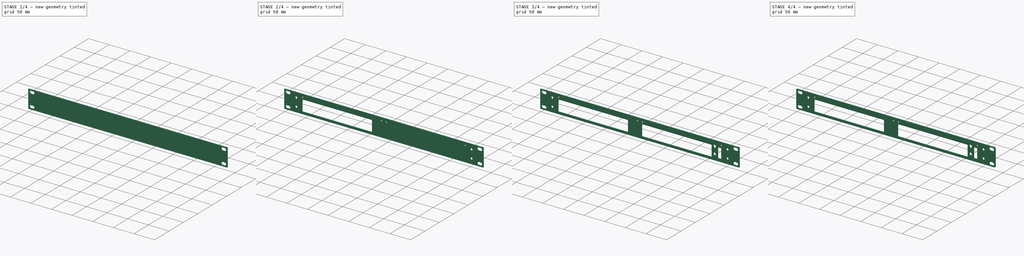
[diagram: build sequence overview — one tinted view per stage of 4, left to right]
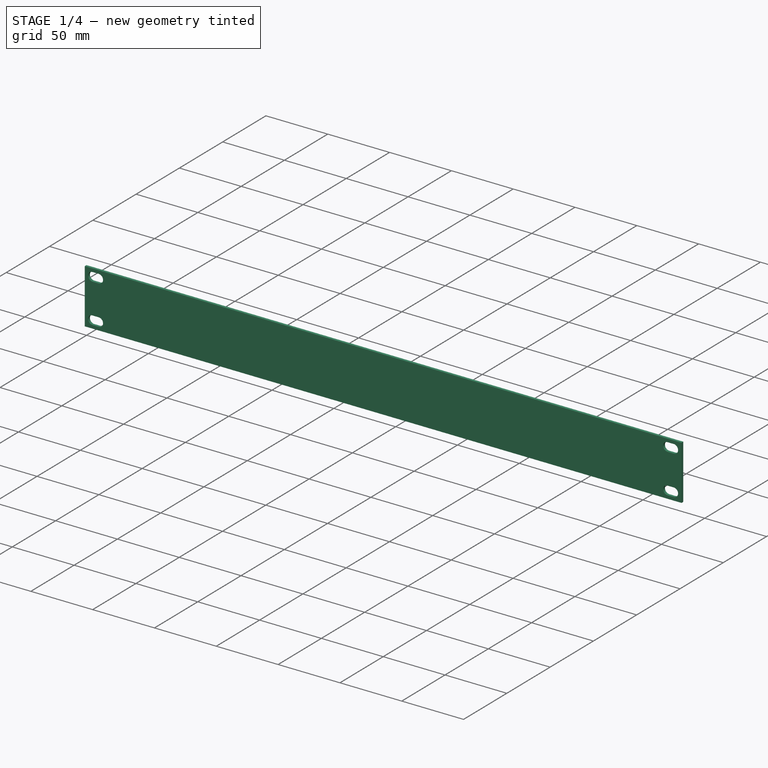
[diagram: stage 1 of 4 — iso view after this stage's code; geometry added in this stage tinted green]
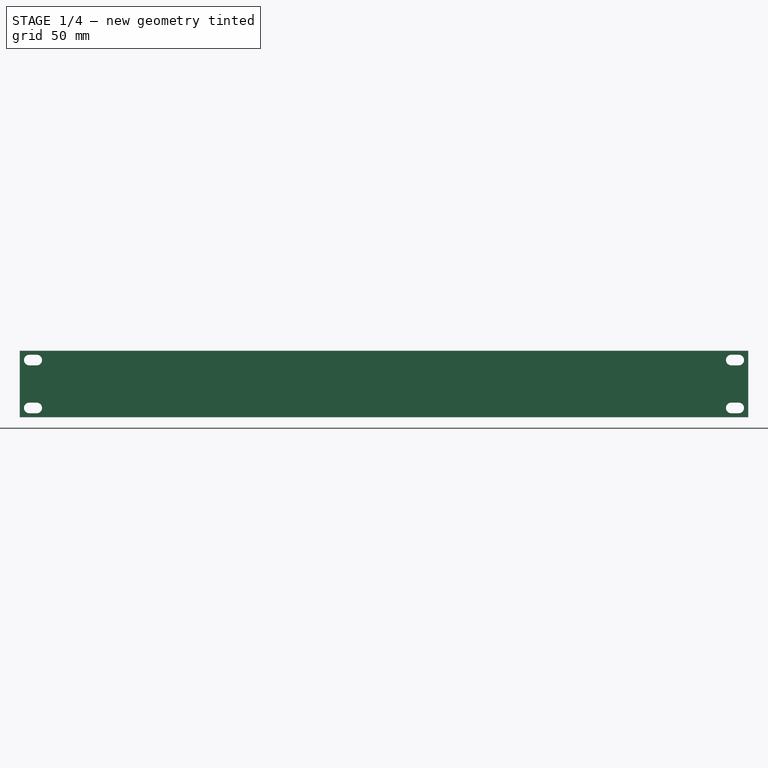
[diagram: stage 1 of 4 — front view after this stage's code; geometry added in this stage tinted green]
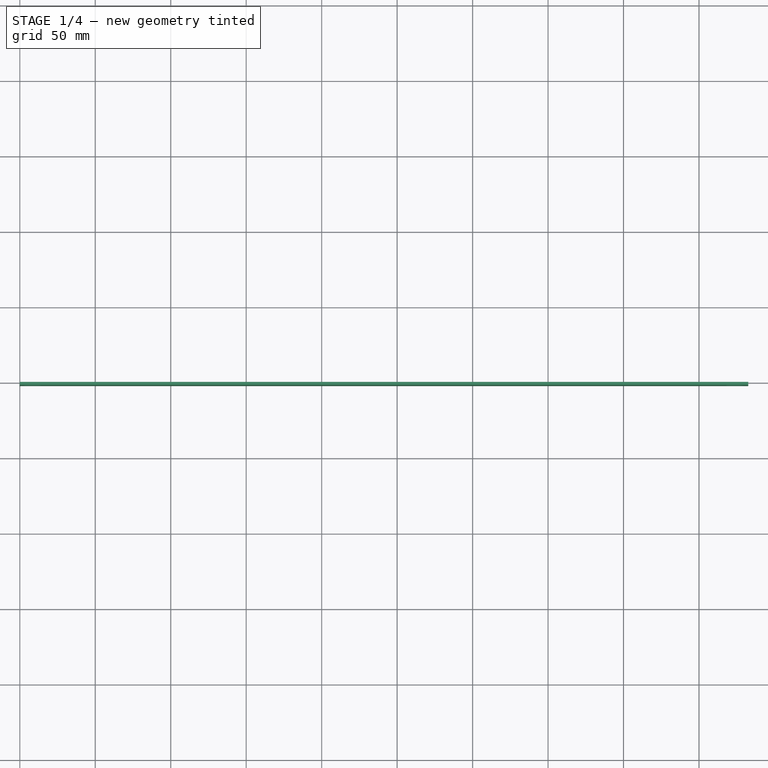
[diagram: stage 1 of 4 — top view after this stage's code; geometry added in this stage tinted green]
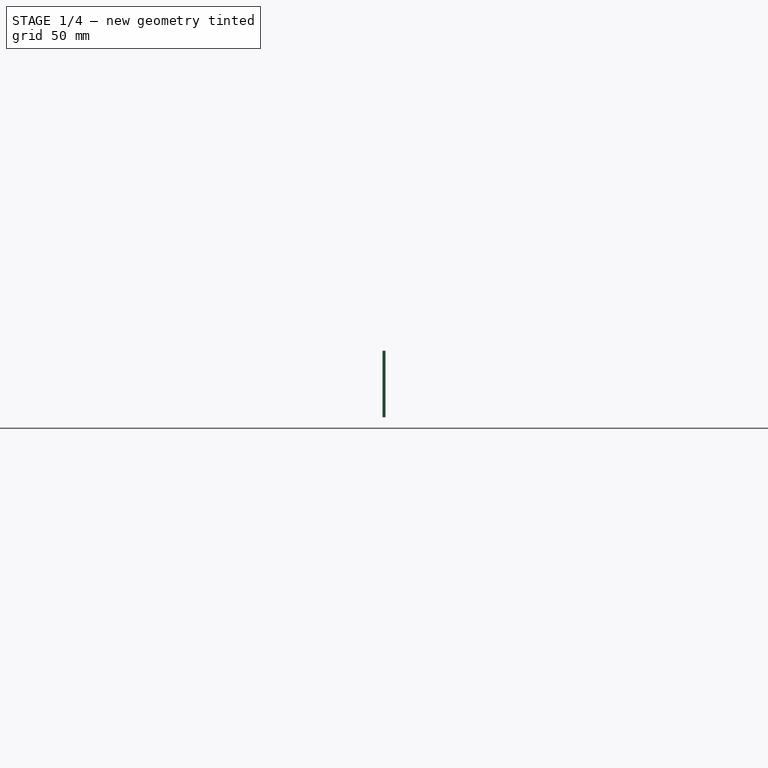
[diagram: stage 1 of 4 — right view after this stage's code; geometry added in this stage tinted green]
FCSTD DOCUMENT  (FreeCAD 1.0R39319 (Git))
Label: front_plate
License: All rights reserved
LicenseURL: https://en.wikipedia.org/wiki/All_rights_reserved
objects: Sketcher::SketchObject×7, PartDesign::Pocket×4, PartDesign::Hole×2, PartDesign::Fillet×2, PartDesign::Pad×1, App::Part×1, PartDesign::LinearPattern×1, PartDesign::Body×1
note: 44 computed .brp shape members not serialized (recipe doc carries the construction recipe); baked Part::Feature solids carry a one-line shape summary decoded from their .brp

FEATURE [Sketcher::SketchObject] Sketch
  ArcFitTolerance = 1e-06
  AttachmentSupport = -> [XZ_Plane]
  FullyConstrained = true
  MakeInternals = false
  MapMode = 5
  Placement = pos=(0,0,0) rot=(1,0,0;1.5708rad)
  sketch-geometry (4):
    g0: LineSegment StartX=0 StartY=0 StartZ=0 EndX=0 EndY=-44 EndZ=0
    g1: LineSegment StartX=0 StartY=-44 StartZ=0 EndX=482.6 EndY=-44 EndZ=0
    g2: LineSegment StartX=482.6 StartY=-44 StartZ=0 EndX=482.6 EndY=0 EndZ=0
    g3: LineSegment StartX=482.6 StartY=0 StartZ=0 EndX=0 EndY=0 EndZ=0
  constraints (11):
    c: Coincident(g0,g1)
    c: Coincident(g1,g2)
    c: Coincident(g2,g3)
    c: Coincident(g3,g0)
    c: Vertical(g0)
    c: Vertical(g2)
    c: Horizontal(g1)
    c: Horizontal(g3)
    c: Coincident(g0,g-1)
    c: DistanceY(g0,g0) = 44
    c: DistanceX(g3,g3) = 482.6
FEATURE [PartDesign::Pad] Pad
  Direction = (0,-1,2e-16)
  Length = 2
  Length2 = 10
  Placement = pos=(0,0,0) rot=(1,0,0;1.5708rad)
  Profile = -> Sketch
  ReferenceAxis = -> Sketch [N_Axis]
  Refine = true
  Suppressed = false
  Type = 0
FEATURE [Sketcher::SketchObject] Sketch001
  ArcFitTolerance = 1e-06
  AttachmentSupport = -> [Pad]
  ExternalGeometry = -> [Pad]
  FullyConstrained = true
  MakeInternals = false
  MapMode = 5
  Placement = pos=(0,-2,0) rot=(1,0,0;1.5708rad)
  expr: Constraints[32] = <<Params>>.Base_HoleWidth / 2
  expr: Constraints[33] = <<Params>>.Base_HoleWidth / 2
  expr: Constraints[59] = <<Params>>.Base_HoleWidth / 2
  expr: Constraints[60] = <<Params>>.Base_HoleWidth / 2
  expr: Constraints[63] = 0.625 * 2 in
  sketch-geometry (31):
    g0: GeomPoint [constr] X=241.3 Y=-44 Z=0
    g1: LineSegment [constr] StartX=241.3 StartY=-44 StartZ=0 EndX=241.3 EndY=0 EndZ=0
    g2: LineSegment [constr] StartX=241.3 StartY=-22 StartZ=0 EndX=0 EndY=-22 EndZ=0
    g3: ArcOfCircle CenterX=471.35 CenterY=-37.875 CenterZ=0 NormalX=0 NormalY=0 NormalZ=1 AngleXU=0 Radius=3.5 StartAngle=1.5708 EndAngle=4.71239
    g4: ArcOfCircle CenterX=476.35 CenterY=-37.875 CenterZ=0 NormalX=0 NormalY=0 NormalZ=1 AngleXU=0 Radius=3.5 StartAngle=4.71239 EndAngle=7.85398
    g5: LineSegment StartX=471.35 StartY=-34.375 StartZ=0 EndX=476.35 EndY=-34.375 EndZ=0
    g6: LineSegment StartX=471.35 StartY=-41.375 StartZ=0 EndX=476.35 EndY=-41.375 EndZ=0
    g7: GeomPoint [constr] X=479.85 Y=-37.875 Z=0
    g8: LineSegment [constr] StartX=471.35 StartY=-37.875 StartZ=0 EndX=476.35 EndY=-37.875 EndZ=0
    g9: GeomPoint [constr] X=473.85 Y=-37.875 Z=0
    g10: ArcOfCircle CenterX=6.25 CenterY=-37.875 CenterZ=0 NormalX=0 NormalY=0 NormalZ=1 AngleXU=0 Radius=3.5 StartAngle=1.5708 EndAngle=4.71239
    g11: ArcOfCircle CenterX=11.25 CenterY=-37.875 CenterZ=0 NormalX=0 NormalY=0 NormalZ=1 AngleXU=0 Radius=3.5 StartAngle=4.71239 EndAngle=7.85398
    g12: LineSegment StartX=6.25 StartY=-34.375 StartZ=0 EndX=11.25 EndY=-34.375 EndZ=0
    g13: LineSegment StartX=6.25 StartY=-41.375 StartZ=0 EndX=11.25 EndY=-41.375 EndZ=0
    g14: GeomPoint [constr] X=2.75 Y=-37.875 Z=0
    g15: LineSegment [constr] StartX=6.25 StartY=-37.875 StartZ=0 EndX=11.25 EndY=-37.875 EndZ=0
    g16: GeomPoint [constr] X=8.75 Y=-37.875 Z=0
    g17: ArcOfCircle CenterX=471.35 CenterY=-6.125 CenterZ=0 NormalX=0 NormalY=0 NormalZ=1 AngleXU=0 Radius=3.5 StartAngle=1.5708 EndAngle=4.71239
    g18: ArcOfCircle CenterX=476.35 CenterY=-6.125 CenterZ=0 NormalX=0 NormalY=0 NormalZ=1 AngleXU=0 Radius=3.5 StartAngle=4.71239 EndAngle=7.85398
    g19: LineSegment StartX=471.35 StartY=-2.625 StartZ=0 EndX=476.35 EndY=-2.625 EndZ=0
    g20: LineSegment StartX=471.35 StartY=-9.625 StartZ=0 EndX=476.35 EndY=-9.625 EndZ=0
    g21: GeomPoint [constr] X=479.85 Y=-6.125 Z=0
    g22: LineSegment [constr] StartX=471.35 StartY=-6.125 StartZ=0 EndX=476.35 EndY=-6.125 EndZ=0
    g23: GeomPoint [constr] X=473.85 Y=-6.125 Z=0
    g24: ArcOfCircle CenterX=6.25 CenterY=-6.125 CenterZ=0 NormalX=0 NormalY=0 NormalZ=1 AngleXU=0 Radius=3.5 StartAngle=1.5708 EndAngle=4.71239
    g25: ArcOfCircle CenterX=11.25 CenterY=-6.125 CenterZ=0 NormalX=0 NormalY=0 NormalZ=1 AngleXU=0 Radius=3.5 StartAngle=4.71239 EndAngle=7.85398
    g26: LineSegment StartX=6.25 StartY=-2.625 StartZ=0 EndX=11.25 EndY=-2.625 EndZ=0
    g27: LineSegment StartX=6.25 StartY=-9.625 StartZ=0 EndX=11.25 EndY=-9.625 EndZ=0
    g28: GeomPoint [constr] X=2.75 Y=-6.125 Z=0
    g29: LineSegment [constr] StartX=6.25 StartY=-6.125 StartZ=0 EndX=11.25 EndY=-6.125 EndZ=0
    g30: GeomPoint [constr] X=8.75 Y=-6.125 Z=0
  constraints (64):
    c: Symmetric(g-4,g-4,g0)
    c: Coincident(g1,g0)
    c: PointOnObject(g1,g-1)
    c: Vertical(g1)
    c: Symmetric(g1,g1,g2)
    c: PointOnObject(g2,g-2)
    c: Horizontal(g2)
    c: Tangent(g3,g5) = 1.5708
    c: Tangent(g3,g6) = -1.5708
    c: Tangent(g4,g5) = 1.5708
    c: Tangent(g4,g6) = -1.5708
    c: Equal(g3,g4)
    c: Horizontal(g5)
    c: DistanceY(g4,g4) = 7
    c: PointOnObject(g7,g4)
    c: Horizontal(g4,g7)
    c: Coincident(g8,g3)
    c: Coincident(g8,g4)
    c: Symmetric(g8,g8,g9)
    c: Tangent(g10,g12) = 1.5708
    c: Tangent(g10,g13) = -1.5708
    c: Tangent(g11,g12) = 1.5708
    c: Tangent(g11,g13) = -1.5708
    c: Equal(g10,g11)
    c: Horizontal(g12)
    c: DistanceY(g11,g11) = 7
    c: PointOnObject(g14,g10)
    c: Horizontal(g10,g14)
    c: Coincident(g15,g10)
    c: Coincident(g15,g11)
    c: Symmetric(g15,g15,g16)
    c: Symmetric(g9,g16,g1)
    c: DistanceX(g14,g16) = 6
    c: DistanceX(g9,g7) = 6
    c: Tangent(g17,g19) = 1.5708
    c: Tangent(g17,g20) = -1.5708
    c: Tangent(g18,g19) = 1.5708
    c: Tangent(g18,g20) = -1.5708
    c: Equal(g17,g18)
    c: Horizontal(g19)
    c: DistanceY(g18,g18) = 7
    c: PointOnObject(g21,g18)
    c: Horizontal(g18,g21)
    c: Coincident(g22,g17)
    c: Coincident(g22,g18)
    c: Symmetric(g22,g22,g23)
    c: Tangent(g24,g26) = 1.5708
    c: Tangent(g24,g27) = -1.5708
    c: Tangent(g25,g26) = 1.5708
    c: Tangent(g25,g27) = -1.5708
    c: Equal(g24,g25)
    c: Horizontal(g26)
    c: DistanceY(g25,g25) = 7
    c: PointOnObject(g28,g24)
    c: Horizontal(g24,g28)
    c: Coincident(g29,g24)
    c: Coincident(g29,g25)
    c: Symmetric(g29,g29,g30)
    c: DistanceX(g30,g23) = 465.1
    c: DistanceX(g28,g30) = 6
    c: DistanceX(g23,g21) = 6
    c: Symmetric(g23,g9,g2)
    c: Symmetric(g30,g16,g2)
    c: DistanceY(g16,g30) = 31.75
FEATURE [App::Part] Part  label="Params"
  Base_HoleWidth = 12
  Origin = -> Origin001
FEATURE [PartDesign::Pocket] Pocket
  BaseFeature = -> Pad
  Direction = (0,1,-2e-16)
  Length = 5
  Length2 = 5
  Placement = pos=(0,0,0) rot=(1,0,0;1.5708rad)
  Profile = -> Sketch001
  ReferenceAxis = -> Sketch001 [N_Axis]
  Refine = true
  Suppressed = false
  Type = 1
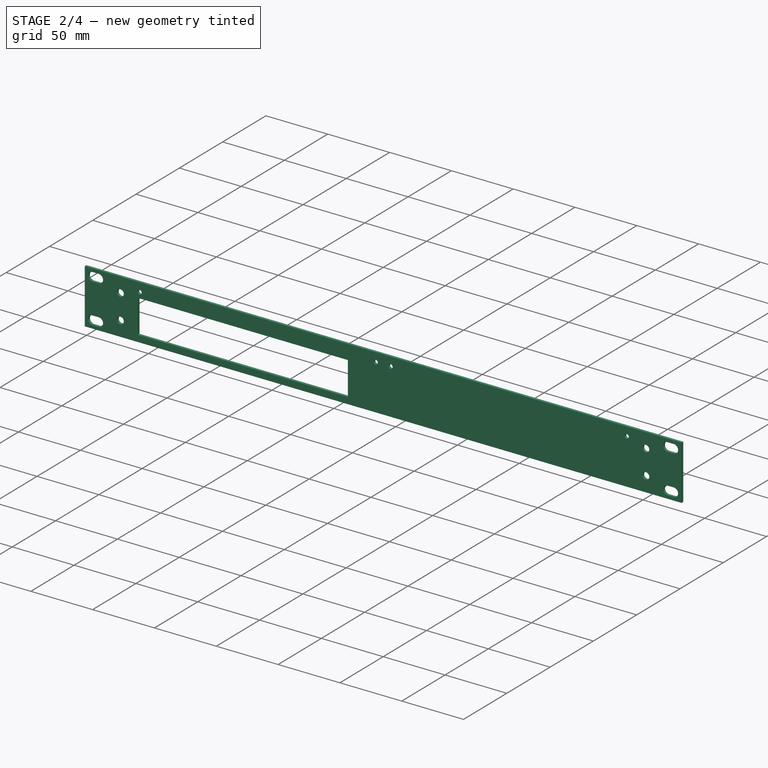
[diagram: stage 2 of 4 — iso view after this stage's code; geometry added in this stage tinted green]
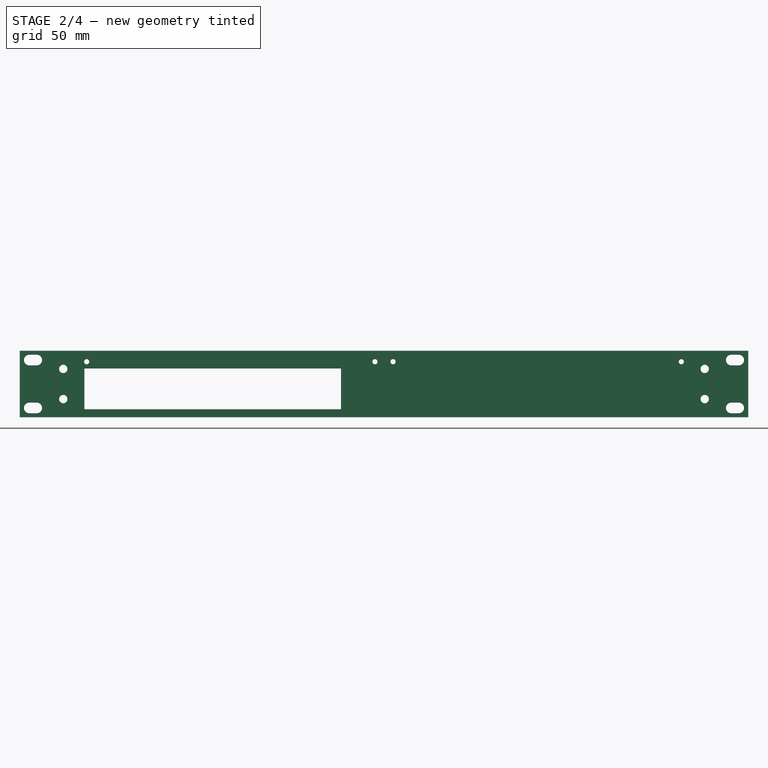
[diagram: stage 2 of 4 — front view after this stage's code; geometry added in this stage tinted green]
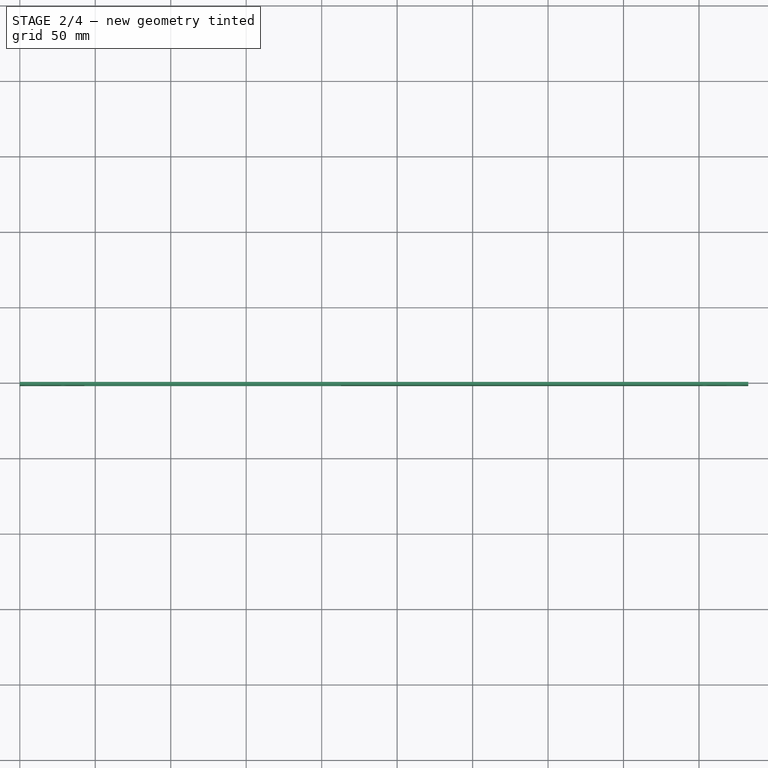
[diagram: stage 2 of 4 — top view after this stage's code; geometry added in this stage tinted green]
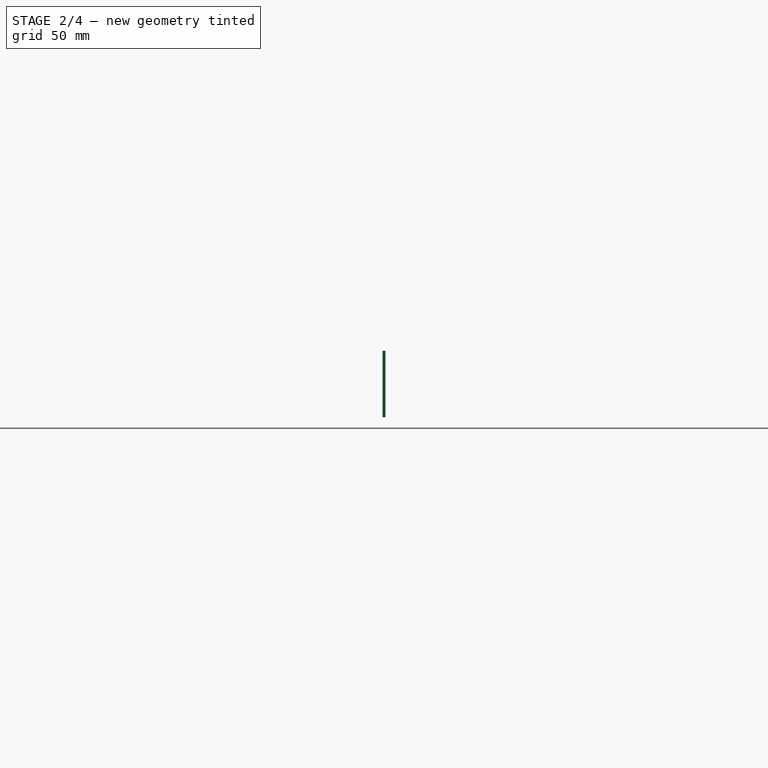
[diagram: stage 2 of 4 — right view after this stage's code; geometry added in this stage tinted green]
FEATURE [Sketcher::SketchObject] Sketch002
  ArcFitTolerance = 1e-06
  AttachmentSupport = -> [Pocket]
  ExternalGeometry = -> [Pocket]
  FullyConstrained = true
  MakeInternals = false
  MapMode = 5
  Placement = pos=(0,-2,0) rot=(1,0,0;1.5708rad)
  sketch-geometry (6):
    g0: LineSegment [constr] StartX=241.3 StartY=-44 StartZ=0 EndX=241.3 EndY=0 EndZ=0
    g1: LineSegment [constr] StartX=241.3 StartY=-22 StartZ=0 EndX=482.6 EndY=-22 EndZ=0
    g2: Circle CenterX=28.8 CenterY=-12 CenterZ=0 NormalX=0 NormalY=0 NormalZ=1 AngleXU=0 Radius=2.5
    g3: Circle CenterX=28.8 CenterY=-32 CenterZ=0 NormalX=0 NormalY=0 NormalZ=1 AngleXU=0 Radius=2.5
    g4: Circle CenterX=453.8 CenterY=-12 CenterZ=0 NormalX=0 NormalY=0 NormalZ=1 AngleXU=0 Radius=2.5
    g5: Circle CenterX=453.8 CenterY=-32 CenterZ=0 NormalX=0 NormalY=0 NormalZ=1 AngleXU=0 Radius=2.5
  constraints (14):
    c: Symmetric(g-4,g-4,g0)
    c: PointOnObject(g0,g-1)
    c: Vertical(g0)
    c: Symmetric(g0,g0,g1)
    c: Symmetric(g-3,g-3,g1)
    c: Symmetric(g2,g3,g1)
    c: Equal(g4,g5)
    c: Diameter(g4) = 5
    c: Equal(g2,g4)
    c: Symmetric(g2,g4,g0)
    c: Symmetric(g4,g5,g1)
    c: DistanceX(g2,g4) = 425
    c: DistanceY(g5,g4) = 20
    c: Equal(g2,g3)
FEATURE [PartDesign::Hole] Hole
  BaseFeature = -> Pocket
  CustomThreadClearance = 0
  Depth = 978.904
  DepthType = 1
  Diameter = 5.5
  DrillForDepth = false
  DrillPoint = 1
  DrillPointAngle = 118
  HoleCutCountersinkAngle = 90
  HoleCutCustomValues = false
  HoleCutDepth = 0
  HoleCutDiameter = 6.1
  HoleCutType = 0
  ModelThread = false
  Placement = pos=(0,0,0) rot=(1,0,0;1.5708rad)
  Profile = -> Sketch002
  Refine = true
  Suppressed = false
  Tapered = false
  TaperedAngle = 90
  ThreadClass = 0
  ThreadDepth = 978.904
  ThreadDepthType = 0
  ThreadDirection = 0
  ThreadFit = 0
  ThreadSize = 13
  ThreadType = 1
  Threaded = false
  UseCustomThreadClearance = false
FEATURE [Sketcher::SketchObject] Sketch003
  ArcFitTolerance = 1e-06
  AttachmentSupport = -> [Hole]
  ExternalGeometry = -> [Hole]
  FullyConstrained = true
  MakeInternals = false
  MapMode = 5
  Placement = pos=(0,-2,0) rot=(1,0,0;1.5708rad)
  sketch-geometry (12):
    g0: GeomPoint [constr] X=482.6 Y=-22 Z=0
    g1: GeomPoint [constr] X=241.3 Y=-44 Z=0
    g2: LineSegment [constr] StartX=241.3 StartY=-44 StartZ=0 EndX=241.3 EndY=0 EndZ=0
    g3: LineSegment [constr] StartX=482.6 StartY=-22 StartZ=0 EndX=241.3 EndY=-22 EndZ=0
    g4: Circle CenterX=438.3 CenterY=-7.25 CenterZ=0 NormalX=0 NormalY=0 NormalZ=1 AngleXU=0 Radius=1.625
    g5: GeomPoint [constr] X=482.6 Y=-2.75 Z=0
    g6: GeomPoint [constr] X=482.6 Y=-41.25 Z=0
    g7: Circle CenterX=247.3 CenterY=-7.25 CenterZ=0 NormalX=0 NormalY=0 NormalZ=1 AngleXU=0 Radius=1.625
    g8: Circle CenterX=235.3 CenterY=-7.25 CenterZ=0 NormalX=0 NormalY=0 NormalZ=1 AngleXU=0 Radius=1.625
    g9: Circle CenterX=44.3 CenterY=-7.25 CenterZ=0 NormalX=0 NormalY=0 NormalZ=1 AngleXU=0 Radius=1.625
    g10: LineSegment [constr] StartX=44.3 StartY=-7.25 StartZ=0 EndX=0 EndY=-7.25 EndZ=0
    g11: LineSegment [constr] StartX=438.3 StartY=-7.25 StartZ=0 EndX=482.6 EndY=-7.25 EndZ=0
  constraints (28):
    c: Symmetric(g-4,g-4,g0)
    c: Symmetric(g-3,g-3,g1)
    c: Coincident(g2,g1)
    c: PointOnObject(g2,g-1)
    c: Vertical(g2)
    c: Coincident(g3,g0)
    c: Symmetric(g2,g2,g3)
    c: Symmetric(g5,g6,g3)
    c: DistanceY(g6,g5) = 38.5
    c: PointOnObject(g5,g-4)
    c: DistanceY(g4,g5) = 4.5
    c: Diameter(g7) = 3.25
    c: Horizontal(g7,g4)
    c: Equal(g4,g7)
    c: DistanceX(g7,g4) = 191
    c: Equal(g8,g7)
    c: DistanceX(g8,g7) = 12
    c: Horizontal(g8,g7)
    c: Equal(g9,g8)
    c: DistanceX(g9,g8) = 191
    c: Horizontal(g9,g8)
    c: Coincident(g10,g9)
    c: PointOnObject(g10,g-2)
    c: Horizontal(g10)
    c: Coincident(g11,g4)
    c: PointOnObject(g11,g-4)
    c: Horizontal(g11)
    c: Equal(g11,g10)
FEATURE [PartDesign::Hole] Hole001
  BaseFeature = -> Hole
  CustomThreadClearance = 0
  Depth = 978.904
  DepthType = 1
  Diameter = 3.4
  DrillForDepth = false
  DrillPoint = 1
  DrillPointAngle = 118
  HoleCutCountersinkAngle = 90
  HoleCutCustomValues = false
  HoleCutDepth = 0
  HoleCutDiameter = 6.1
  HoleCutType = 0
  ModelThread = false
  Placement = pos=(0,0,0) rot=(1,0,0;1.5708rad)
  Profile = -> Sketch003
  Refine = true
  Suppressed = false
  Tapered = false
  TaperedAngle = 90
  ThreadClass = 0
  ThreadDepth = 978.904
  ThreadDepthType = 0
  ThreadDirection = 0
  ThreadFit = 0
  ThreadSize = 9
  ThreadType = 1
  Threaded = false
  UseCustomThreadClearance = false
FEATURE [Sketcher::SketchObject] Sketch004
  ArcFitTolerance = 1e-06
  AttachmentSupport = -> [Hole001]
  ExternalGeometry = -> [Hole001]
  FullyConstrained = true
  MakeInternals = false
  MapMode = 5
  Placement = pos=(0,-2,0) rot=(1,0,0;1.5708rad)
  sketch-geometry (4):
    g0: LineSegment StartX=42.8 StartY=-11.75 StartZ=0 EndX=42.8 EndY=-38.75 EndZ=0
    g1: LineSegment StartX=42.8 StartY=-38.75 StartZ=0 EndX=212.8 EndY=-38.75 EndZ=0
    g2: LineSegment StartX=212.8 StartY=-38.75 StartZ=0 EndX=212.8 EndY=-11.75 EndZ=0
    g3: LineSegment StartX=212.8 StartY=-11.75 StartZ=0 EndX=42.8 EndY=-11.75 EndZ=0
  constraints (12):
    c: Coincident(g0,g1)
    c: Coincident(g1,g2)
    c: Coincident(g2,g3)
    c: Coincident(g3,g0)
    c: Vertical(g0)
    c: Vertical(g2)
    c: Horizontal(g1)
    c: Horizontal(g3)
    c: DistanceY(g0,g-3) = 4.5
    c: DistanceX(g0,g-3) = 1.5
    c: DistanceY(g0,g0) = 27
    c: DistanceX(g3,g3) = 170
FEATURE [PartDesign::Pocket] Pocket001
  BaseFeature = -> Hole001
  Direction = (0,1,-2e-16)
  Length = 5
  Length2 = 5
  Placement = pos=(0,0,0) rot=(1,0,0;1.5708rad)
  Profile = -> Sketch004
  ReferenceAxis = -> Sketch004 [N_Axis]
  Refine = true
  Suppressed = false
  Type = 1
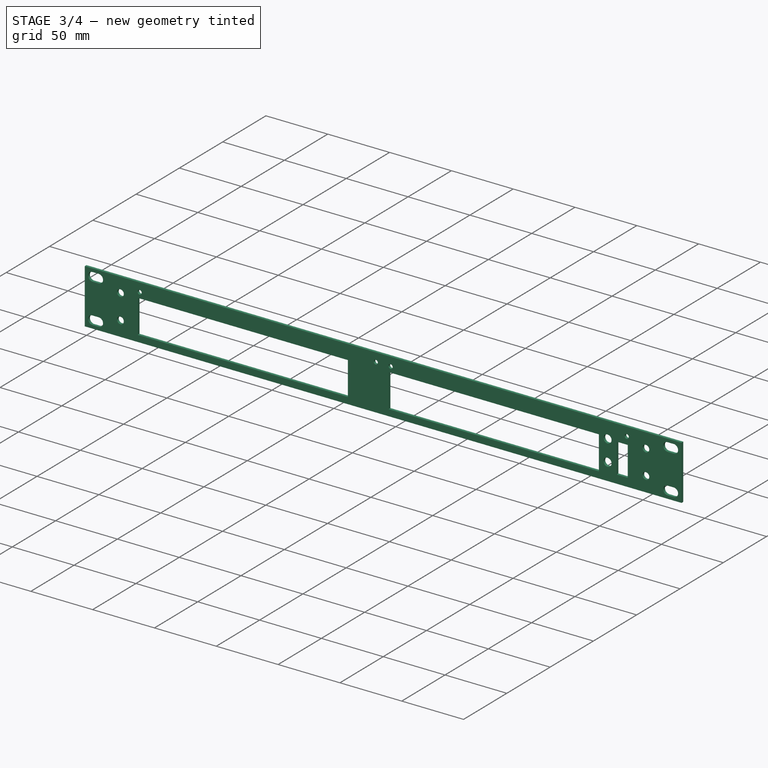
[diagram: stage 3 of 4 — iso view after this stage's code; geometry added in this stage tinted green]
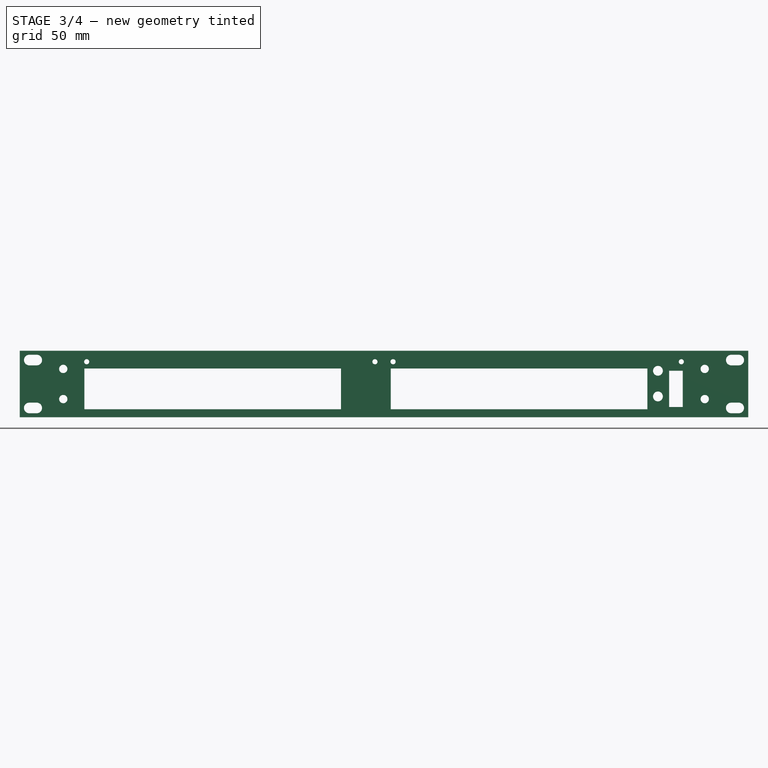
[diagram: stage 3 of 4 — front view after this stage's code; geometry added in this stage tinted green]
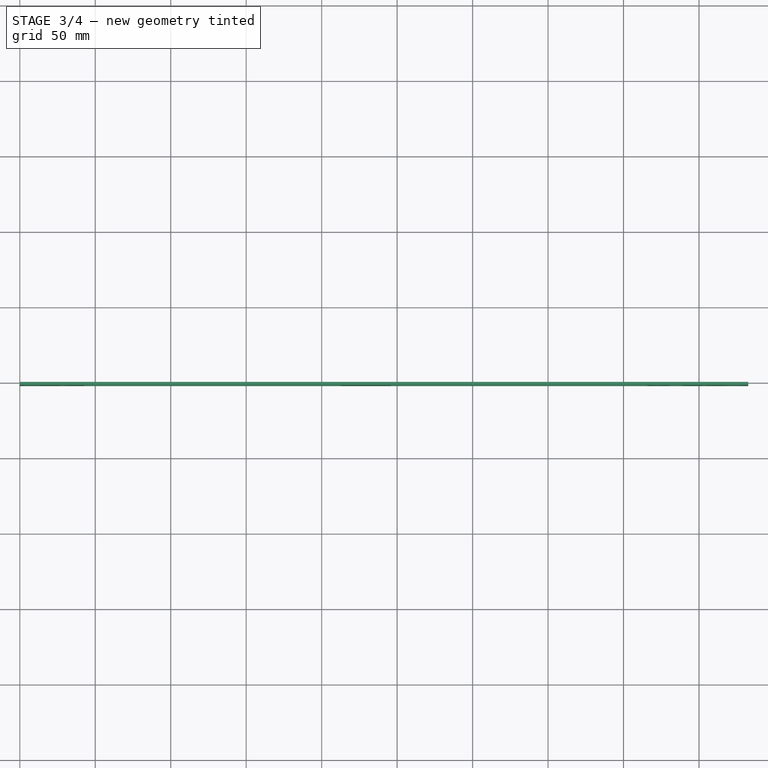
[diagram: stage 3 of 4 — top view after this stage's code; geometry added in this stage tinted green]
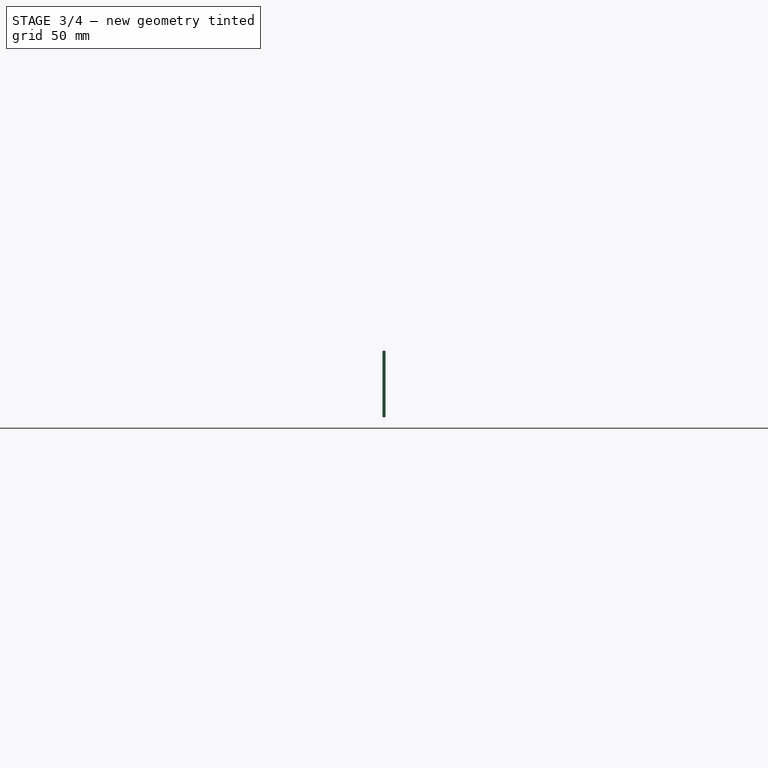
[diagram: stage 3 of 4 — right view after this stage's code; geometry added in this stage tinted green]
FEATURE [PartDesign::LinearPattern] LinearPattern
  BaseFeature = -> Pocket001
  Direction = -> Sketch004 [H_Axis]
  Length = 203
  Mode = 0
  Occurrences = 2
  Offset = 203
  Originals = -> [Pocket001]
  Placement = pos=(0,0,0) rot=(1,0,0;1.5708rad)
  Refine = true
  Suppressed = false
  TransformMode = 0
FEATURE [Sketcher::SketchObject] Sketch005
  ArcFitTolerance = 1e-06
  AttachmentSupport = -> [LinearPattern]
  ExternalGeometry = -> [LinearPattern]
  FullyConstrained = true
  MakeInternals = false
  MapMode = 5
  Placement = pos=(0,-2,0) rot=(1,0,0;1.5708rad)
  sketch-geometry (2):
    g0: Circle CenterX=422.8 CenterY=-13.25 CenterZ=0 NormalX=0 NormalY=0 NormalZ=1 AngleXU=0 Radius=3.25
    g1: Circle CenterX=422.8 CenterY=-30.25 CenterZ=0 NormalX=0 NormalY=0 NormalZ=1 AngleXU=0 Radius=3.25
  constraints (6):
    c: Diameter(g0) = 6.5
    c: DistanceX(g0,g-3) = 15.5
    c: DistanceY(g0,g-3) = 6
    c: Vertical(g1,g0)
    c: Equal(g1,g0)
    c: DistanceY(g1,g0) = 17
FEATURE [PartDesign::Pocket] Pocket002
  BaseFeature = -> LinearPattern
  Direction = (0,1,-2e-16)
  Length = 5
  Length2 = 5
  Placement = pos=(0,0,0) rot=(1,0,0;1.5708rad)
  Profile = -> Sketch005
  ReferenceAxis = -> Sketch005 [N_Axis]
  Refine = true
  Suppressed = false
  Type = 1
FEATURE [Sketcher::SketchObject] Sketch006
  ArcFitTolerance = 1e-06
  AttachmentSupport = -> [Pocket002]
  ExternalGeometry = -> [Pocket002]
  FullyConstrained = true
  MakeInternals = false
  MapMode = 5
  Placement = pos=(0,-2,0) rot=(1,0,0;1.5708rad)
  sketch-geometry (5):
    g0: LineSegment StartX=430.2 StartY=-13.25 StartZ=0 EndX=430.2 EndY=-37.25 EndZ=0
    g1: LineSegment StartX=430.2 StartY=-37.25 StartZ=0 EndX=439.2 EndY=-37.25 EndZ=0
    g2: LineSegment StartX=439.2 StartY=-37.25 StartZ=0 EndX=439.2 EndY=-13.25 EndZ=0
    g3: LineSegment StartX=439.2 StartY=-13.25 StartZ=0 EndX=430.2 EndY=-13.25 EndZ=0
    g4: GeomPoint [constr] X=434.7 Y=-13.25 Z=0
  constraints (13):
    c: Coincident(g0,g1)
    c: Coincident(g1,g2)
    c: Coincident(g2,g3)
    c: Coincident(g3,g0)
    c: Vertical(g0)
    c: Vertical(g2)
    c: Horizontal(g1)
    c: Horizontal(g3)
    c: DistanceX(g3,g3) = 9
    c: DistanceY(g0,g0) = 24
    c: Symmetric(g3,g3,g4)
    c: DistanceX(g4,g-3) = 3.6
    c: DistanceY(g4,g-3) = 6
FEATURE [PartDesign::Pocket] Pocket003
  BaseFeature = -> Pocket002
  Direction = (0,1,-2e-16)
  Length = 5
  Length2 = 5
  Placement = pos=(0,0,0) rot=(1,0,0;1.5708rad)
  Profile = -> Sketch006
  ReferenceAxis = -> Sketch006 [N_Axis]
  Refine = true
  Suppressed = false
  Type = 1
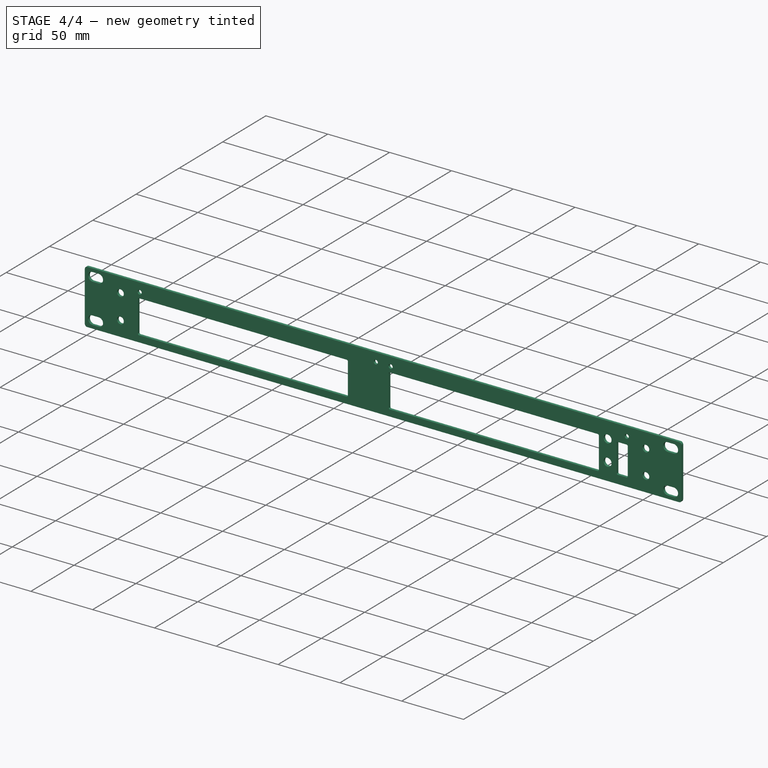
[diagram: stage 4 of 4 — iso view after this stage's code; geometry added in this stage tinted green]
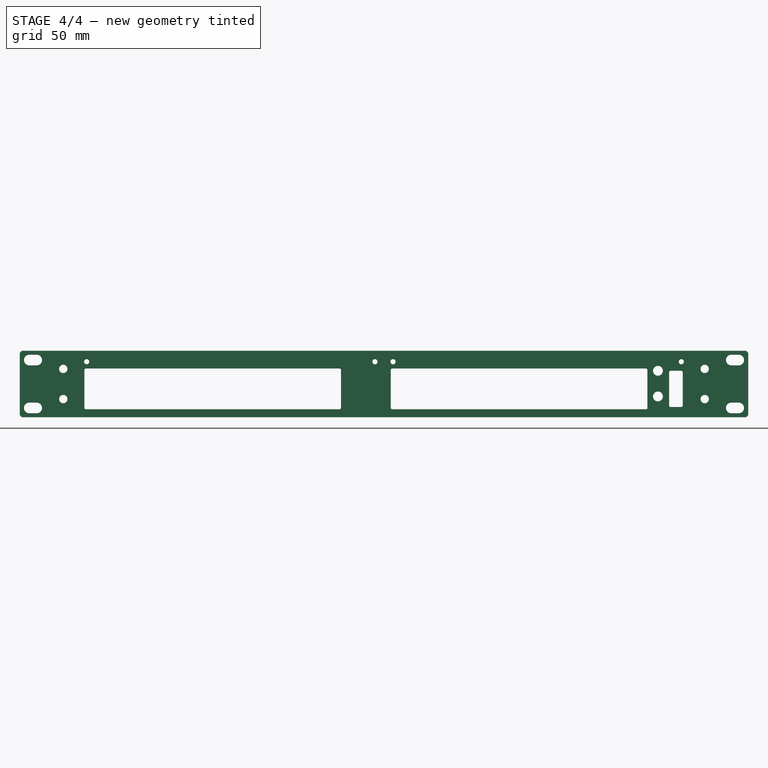
[diagram: stage 4 of 4 — front view after this stage's code; geometry added in this stage tinted green]
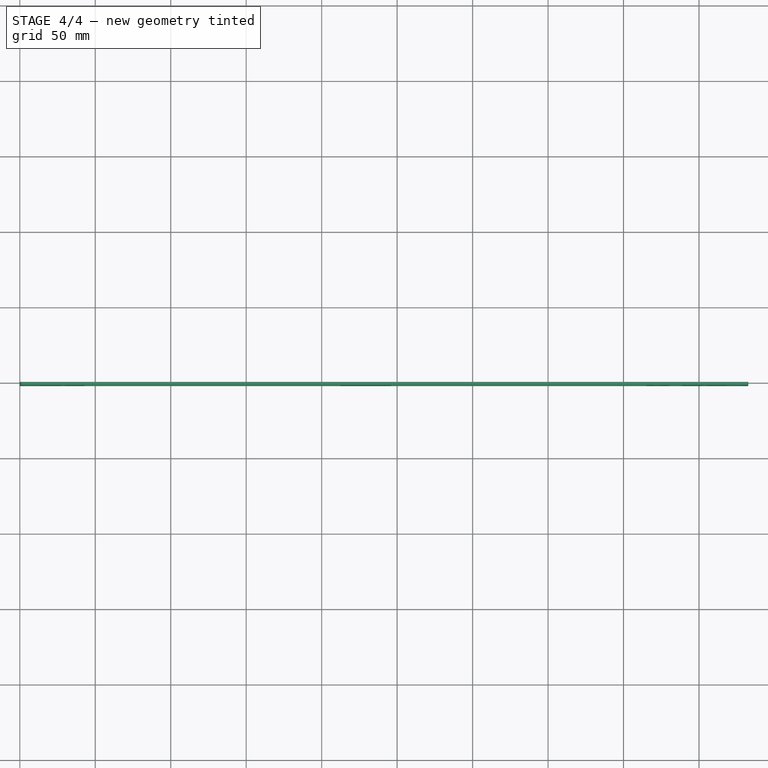
[diagram: stage 4 of 4 — top view after this stage's code; geometry added in this stage tinted green]
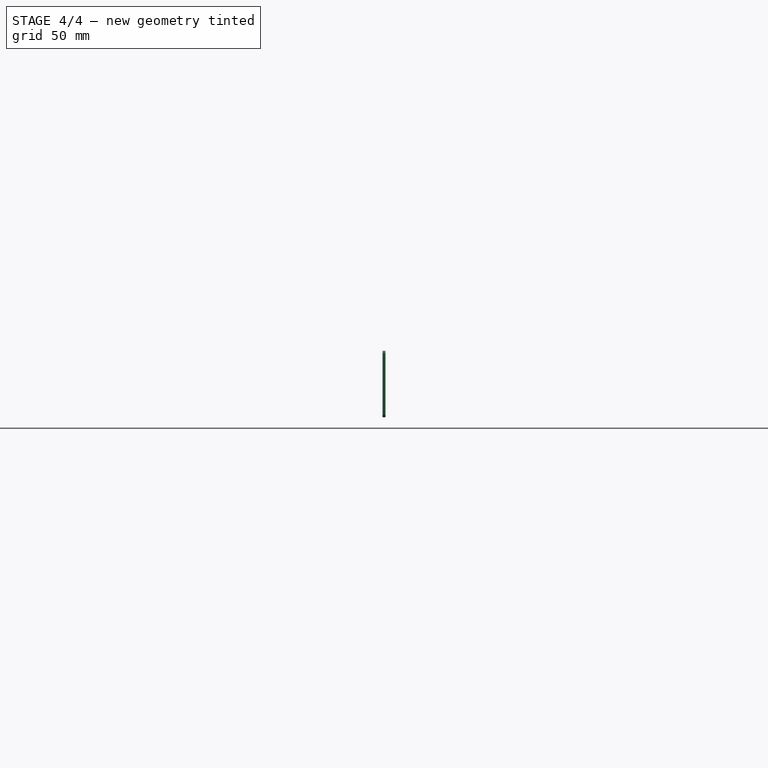
[diagram: stage 4 of 4 — right view after this stage's code; geometry added in this stage tinted green]
FEATURE [PartDesign::Fillet] Fillet
  Base = -> Pocket003 [Edge117,Edge116,Edge115,Edge118,Edge108,Edge107,Edge106,Edge105,Edge94,Edge95,Edge97,Edge96]
  BaseFeature = -> Pocket003
  Placement = pos=(0,0,0) rot=(1,0,0;1.5708rad)
  Radius = 1
  Refine = true
  SupportTransform = false
  Suppressed = false
  UseAllEdges = false
FEATURE [PartDesign::Fillet] Fillet001
  Base = -> Fillet [Edge76,Edge74,Edge72,Edge71]
  BaseFeature = -> Fillet
  Placement = pos=(0,0,0) rot=(1,0,0;1.5708rad)
  Radius = 2
  Refine = true
  SupportTransform = false
  Suppressed = false
  UseAllEdges = false
FEATURE [PartDesign::Body] Body  label="front_plate"
  AllowCompound = false
  Group = -> [Sketch,Pad,Sketch001,Pocket,Sketch002,Hole,Sketch003,Hole001,Sketch004,Pocket001,LinearPattern,Sketch005,Pocket002,Sketch006,Pocket003,Fillet,Fillet001]
  Origin = -> Origin
  Tip = -> Fillet001
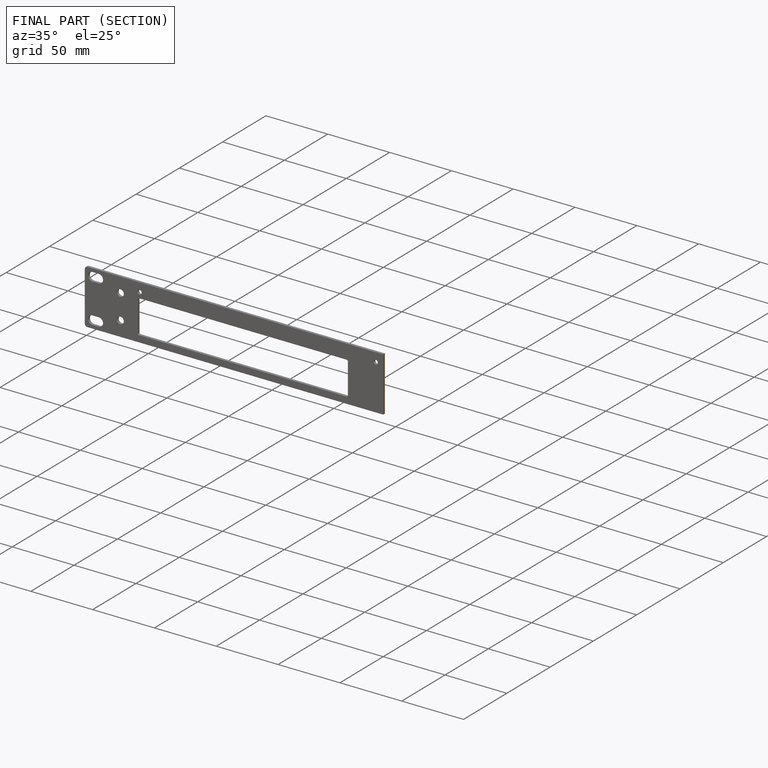
[diagram: finished part — half-section view (interior)]
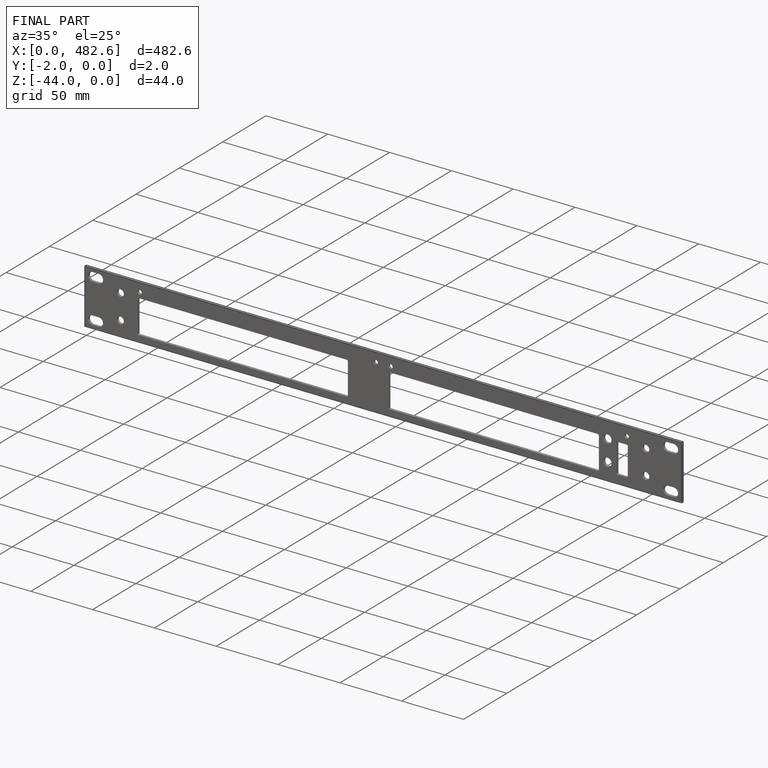
[diagram: finished part — iso view with bounding-box wireframe]
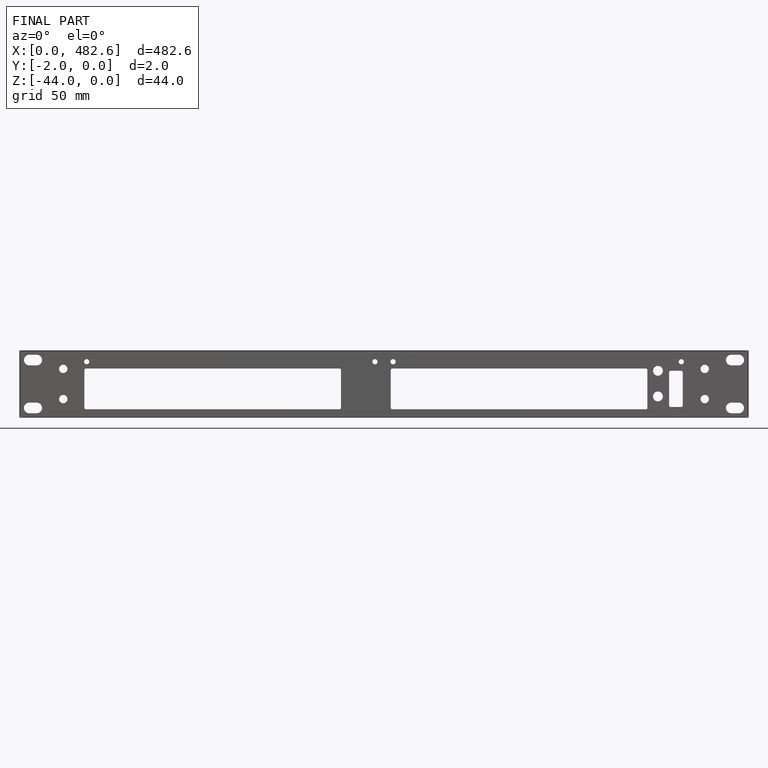
[diagram: finished part — front view with bounding-box wireframe]
